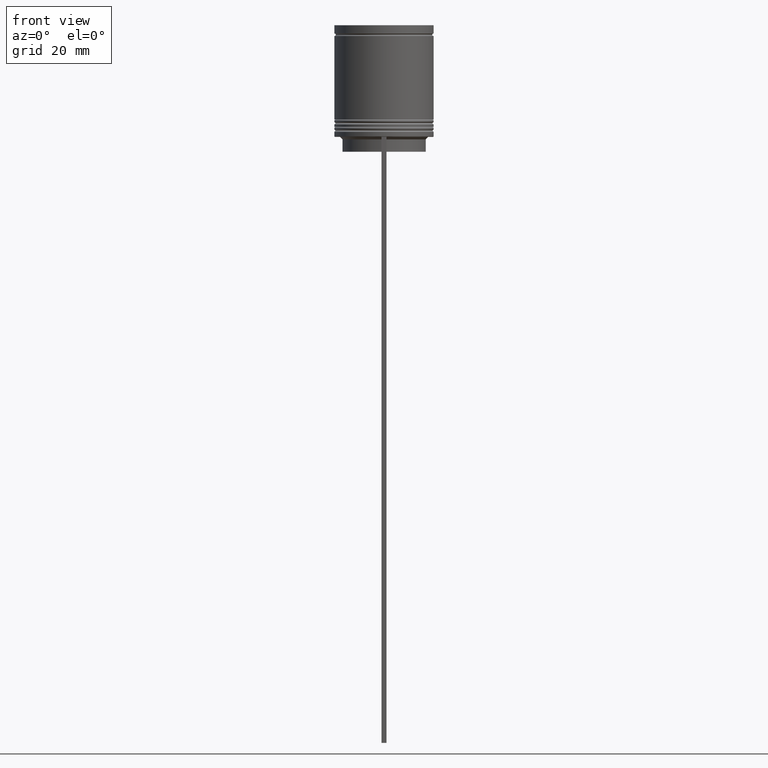
[diagram: clean part render]
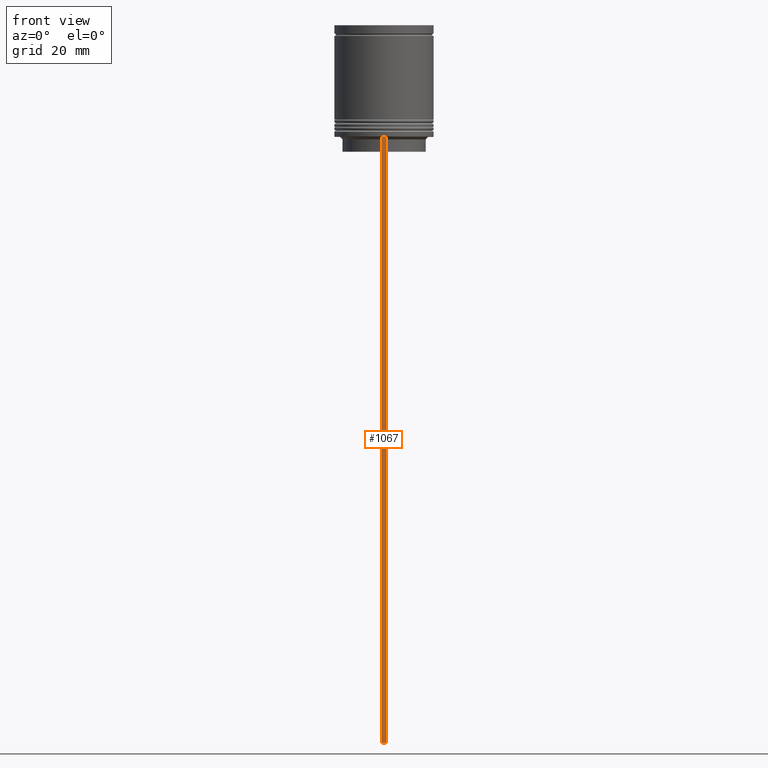
[diagram: same view with one face highlighted and labeled with its STEP entity id]
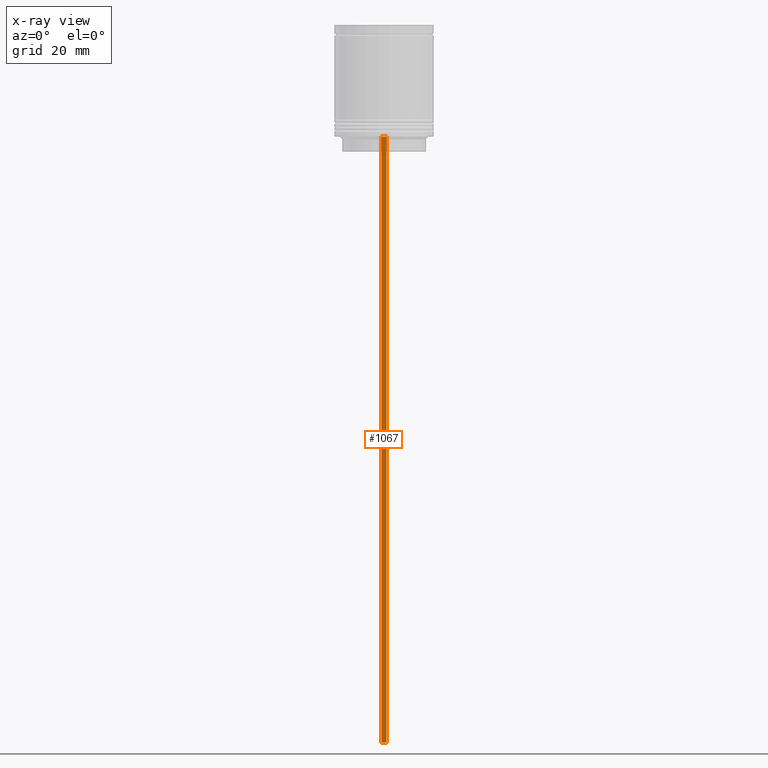
[diagram: x-ray of the same camera — body ghosted, the highlighted face saturated]
A machine part, front view. The second image highlights one B-rep face of the part: STEP entity #1067.
The next image is the same camera in x-ray: the body ghosted, the highlighted face saturated — about 0% of this face is hidden behind the body in this view.
In plain terms, the highlighted planar face has unit normal (0, -1, -0).
Its self-contained STEP definition (entity closure, byte-faithful):
#17 = DIRECTION ( 'NONE',  ( 0.000000000000000000, 0.000000000000000000, -1.000000000000000000 ) ) ;
#156 = VERTEX_POINT ( 'NONE', #466 ) ;
#177 = FACE_OUTER_BOUND ( 'NONE', #250, .T. ) ;
#193 = VECTOR ( 'NONE', #928, 1000.000000000000000 ) ;
#250 = EDGE_LOOP ( 'NONE', ( #961, #727, #1252, #1689 ) ) ;
#263 = VECTOR ( 'NONE', #1937, 1000.000000000000000 ) ;
#277 = VERTEX_POINT ( 'NONE', #827 ) ;
#336 = LINE ( 'NONE', #1295, #263 ) ;
#347 = EDGE_CURVE ( 'NONE', #703, #277, #2030, .T. ) ;
#453 = CARTESIAN_POINT ( 'NONE',  ( 0.5000000000000000000, -10.00000000000000178, -22.50000000000000000 ) ) ;
#466 = CARTESIAN_POINT ( 'NONE',  ( -0.5000000000000000000, -10.00000000000000178, -22.50000000000000000 ) ) ;
#470 = DIRECTION ( 'NONE',  ( 0.000000000000000000, 0.000000000000000000, -1.000000000000000000 ) ) ;
#511 = DIRECTION ( 'NONE',  ( 0.000000000000000000, -1.000000000000000000, -0.000000000000000000 ) ) ;
#571 = EDGE_CURVE ( 'NONE', #156, #277, #1452, .T. ) ;
#573 = VECTOR ( 'NONE', #2086, 1000.000000000000000 ) ;
#661 = CARTESIAN_POINT ( 'NONE',  ( 0.5000000000000000000, -10.00000000000000178, -2.475015605499213844 ) ) ;
#689 = CARTESIAN_POINT ( 'NONE',  ( 0.5000000000000000000, -10.00000000000000178, -144.5000000000000000 ) ) ;
#703 = VERTEX_POINT ( 'NONE', #689 ) ;
#727 = ORIENTED_EDGE ( 'NONE', *, *, #571, .T. ) ;
#768 = EDGE_CURVE ( 'NONE', #156, #1550, #1115, .T. ) ;
#827 = CARTESIAN_POINT ( 'NONE',  ( -0.5000000000000000000, -10.00000000000000178, -144.5000000000000000 ) ) ;
#928 = DIRECTION ( 'NONE',  ( -1.000000000000000000, 0.000000000000000000, 0.000000000000000000 ) ) ;
#961 = ORIENTED_EDGE ( 'NONE', *, *, #768, .F. ) ;
#1015 = CARTESIAN_POINT ( 'NONE',  ( 0.5000000000000000000, -10.00000000000000178, -22.50000000000000000 ) ) ;
#1067 = ADVANCED_FACE ( 'NONE', ( #177 ), #1757, .T. ) ;
#1115 = LINE ( 'NONE', #453, #573 ) ;
#1252 = ORIENTED_EDGE ( 'NONE', *, *, #347, .F. ) ;
#1295 = CARTESIAN_POINT ( 'NONE',  ( 0.5000000000000000000, -10.00000000000000178, -2.475015605499213844 ) ) ;
#1373 = CARTESIAN_POINT ( 'NONE',  ( 0.5000000000000000000, -10.00000000000000178, -144.5000000000000000 ) ) ;
#1452 = LINE ( 'NONE', #1613, #1665 ) ;
#1550 = VERTEX_POINT ( 'NONE', #1015 ) ;
#1613 = CARTESIAN_POINT ( 'NONE',  ( -0.5000000000000000000, -10.00000000000000178, -2.475015605499213844 ) ) ;
#1665 = VECTOR ( 'NONE', #17, 1000.000000000000000 ) ;
#1689 = ORIENTED_EDGE ( 'NONE', *, *, #1898, .F. ) ;
#1757 = PLANE ( 'NONE',  #1941 ) ;
#1898 = EDGE_CURVE ( 'NONE', #1550, #703, #336, .T. ) ;
#1937 = DIRECTION ( 'NONE',  ( 0.000000000000000000, 0.000000000000000000, -1.000000000000000000 ) ) ;
#1941 = AXIS2_PLACEMENT_3D ( 'NONE', #661, #511, #470 ) ;
#2030 = LINE ( 'NONE', #1373, #193 ) ;
#2086 = DIRECTION ( 'NONE',  ( 1.000000000000000000, 0.000000000000000000, 0.000000000000000000 ) ) ;